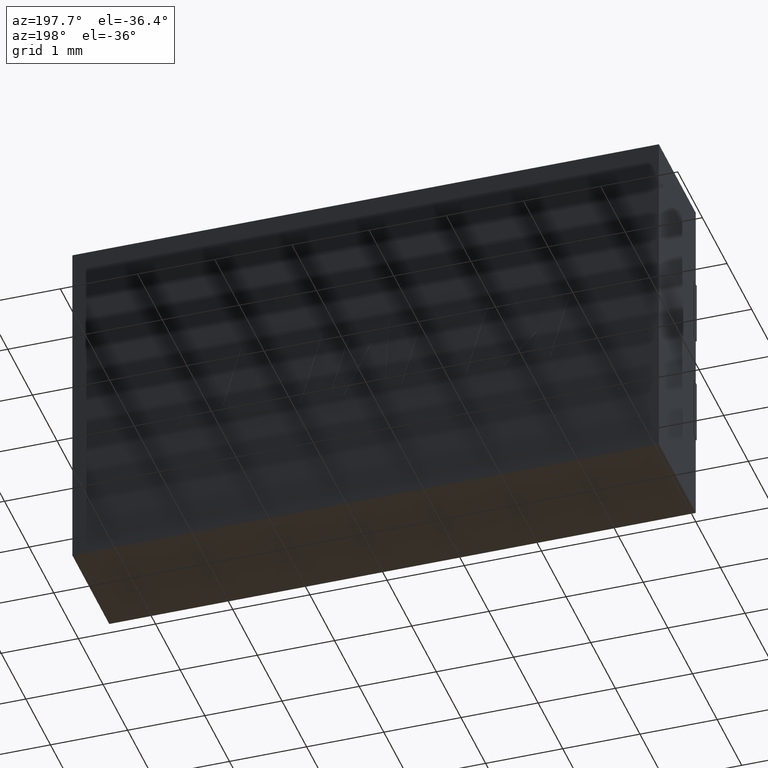
[diagram: clean part render]
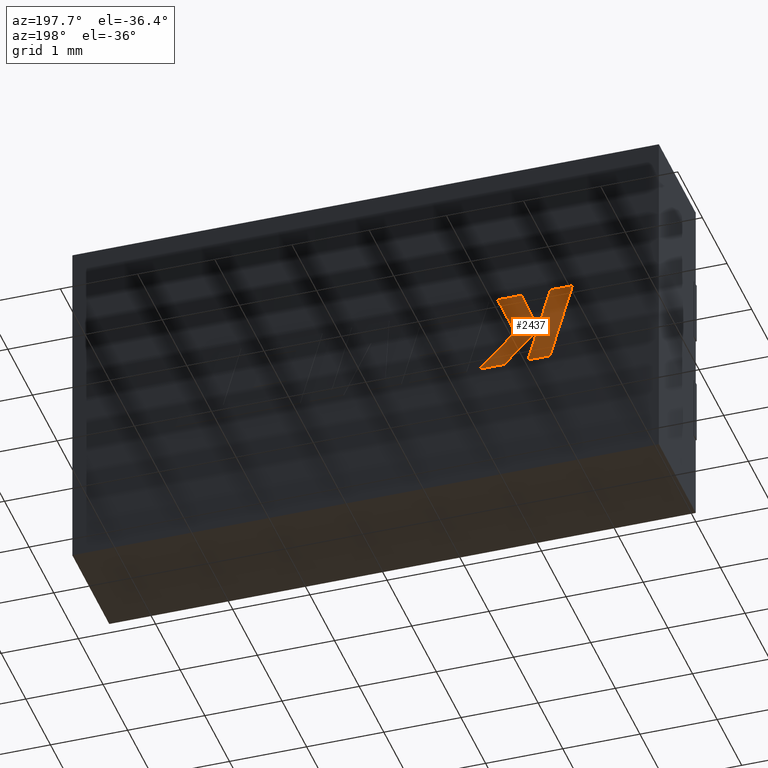
[diagram: same view with one face highlighted and labeled with its STEP entity id]
A machine part, auxiliary view. The second image highlights one B-rep face of the part: STEP entity #2437.
In plain terms, the highlighted planar face has unit normal (0, -1, 0).
Its self-contained STEP definition (entity closure, byte-faithful):
#16 = CARTESIAN_POINT ( 'NONE',  ( 2.086281039440971874, 1.510000000000000009, -1.926069293473886113 ) ) ;
#72 = EDGE_CURVE ( 'NONE', #1980, #699, #902, .T. ) ;
#83 = VECTOR ( 'NONE', #1527, 1000.000000000000114 ) ;
#181 = ORIENTED_EDGE ( 'NONE', *, *, #2844, .T. ) ;
#182 = LINE ( 'NONE', #2903, #1081 ) ;
#189 = CARTESIAN_POINT ( 'NONE',  ( 1.569826276927433151, 1.510000000000000009, -2.504262488550995425 ) ) ;
#251 = CARTESIAN_POINT ( 'NONE',  ( 1.402965152710222041, 1.510000000000000009, -1.926069293473886113 ) ) ;
#270 = DIRECTION ( 'NONE',  ( 0.7145695586381820563, -0.000000000000000000, -0.6995643972270413347 ) ) ;
#293 = LINE ( 'NONE', #2756, #1026 ) ;
#319 = FACE_OUTER_BOUND ( 'NONE', #2489, .T. ) ;
#337 = DIRECTION ( 'NONE',  ( 0.000000000000000000, -1.000000000000000000, 0.000000000000000000 ) ) ;
#365 = ORIENTED_EDGE ( 'NONE', *, *, #2232, .T. ) ;
#392 = CARTESIAN_POINT ( 'NONE',  ( 1.116314552832554208, 1.510000000000000009, -1.926069293473917421 ) ) ;
#407 = CARTESIAN_POINT ( 'NONE',  ( 1.779556712731359847, 1.510000000000000009, -1.926069293473886113 ) ) ;
#498 = ORIENTED_EDGE ( 'NONE', *, *, #514, .T. ) ;
#514 = EDGE_CURVE ( 'NONE', #1060, #1980, #293, .T. ) ;
#517 = ORIENTED_EDGE ( 'NONE', *, *, #2490, .T. ) ;
#610 = LINE ( 'NONE', #2274, #1227 ) ;
#619 = LINE ( 'NONE', #1358, #2239 ) ;
#643 = CARTESIAN_POINT ( 'NONE',  ( 1.693051797399718339, 1.510000000000000009, -2.934144902229014473 ) ) ;
#651 = DIRECTION ( 'NONE',  ( 0.2755265765475166662, -0.000000000000000000, -0.9612934544747537835 ) ) ;
#698 = VECTOR ( 'NONE', #2015, 1000.000000000000000 ) ;
#699 = VERTEX_POINT ( 'NONE', #2449 ) ;
#775 = CARTESIAN_POINT ( 'NONE',  ( 1.406018051842748973, 1.510000000000000009, -2.934144902229014473 ) ) ;
#787 = VERTEX_POINT ( 'NONE', #2063 ) ;
#896 = LINE ( 'NONE', #189, #1015 ) ;
#902 = LINE ( 'NONE', #2470, #1622 ) ;
#973 = CARTESIAN_POINT ( 'NONE',  ( 1.779556712731359847, 1.510000000000000009, -1.926069293473886113 ) ) ;
#1015 = VECTOR ( 'NONE', #2910, 1000.000000000000000 ) ;
#1026 = VECTOR ( 'NONE', #1859, 1000.000000000000000 ) ;
#1044 = EDGE_CURVE ( 'NONE', #2406, #1060, #610, .T. ) ;
#1060 = VERTEX_POINT ( 'NONE', #392 ) ;
#1062 = DIRECTION ( 'NONE',  ( 1.000000000000000000, -0.000000000000000000, -0.000000000000000000 ) ) ;
#1081 = VECTOR ( 'NONE', #1062, 1000.000000000000000 ) ;
#1083 = ORIENTED_EDGE ( 'NONE', *, *, #2210, .T. ) ;
#1097 = CARTESIAN_POINT ( 'NONE',  ( 1.569826276927433151, 1.510000000000000009, -2.504262488550995425 ) ) ;
#1215 = ORIENTED_EDGE ( 'NONE', *, *, #1044, .T. ) ;
#1227 = VECTOR ( 'NONE', #2944, 999.9999999999998863 ) ;
#1236 = CARTESIAN_POINT ( 'NONE',  ( 0.000000000000000000, 1.510000000000000009, 0.000000000000000000 ) ) ;
#1249 = DIRECTION ( 'NONE',  ( 0.000000000000000000, -0.000000000000000000, -1.000000000000000000 ) ) ;
#1307 = CARTESIAN_POINT ( 'NONE',  ( 1.998249674947784049, 1.510000000000000009, -2.934144902229014473 ) ) ;
#1358 = CARTESIAN_POINT ( 'NONE',  ( 1.859397973295460416, 1.510000000000000009, -2.473426989419050592 ) ) ;
#1371 = VECTOR ( 'NONE', #270, 1000.000000000000000 ) ;
#1410 = CARTESIAN_POINT ( 'NONE',  ( 2.329997959398633967, 1.510000000000000009, -2.934144902229014473 ) ) ;
#1442 = CARTESIAN_POINT ( 'NONE',  ( 1.859397973295460416, 1.510000000000000009, -2.473426989419050592 ) ) ;
#1489 = EDGE_CURVE ( 'NONE', #1490, #2406, #2020, .T. ) ;
#1490 = VERTEX_POINT ( 'NONE', #643 ) ;
#1523 = VERTEX_POINT ( 'NONE', #16 ) ;
#1527 = DIRECTION ( 'NONE',  ( 0.2755520632520532809, -0.000000000000000000, -0.9612861490927331332 ) ) ;
#1533 = DIRECTION ( 'NONE',  ( -0.3829140317376946157, -0.000000000000000000, -0.9237839814038689701 ) ) ;
#1543 = ORIENTED_EDGE ( 'NONE', *, *, #2506, .T. ) ;
#1576 = CARTESIAN_POINT ( 'NONE',  ( 1.406018051842748973, 1.510000000000000009, -2.934144902229014473 ) ) ;
#1582 = VERTEX_POINT ( 'NONE', #1442 ) ;
#1622 = VECTOR ( 'NONE', #651, 1000.000000000000114 ) ;
#1773 = CARTESIAN_POINT ( 'NONE',  ( 1.998249674947784049, 1.510000000000000009, -2.934144902229014473 ) ) ;
#1800 = AXIS2_PLACEMENT_3D ( 'NONE', #1236, #337, #1249 ) ;
#1820 = VERTEX_POINT ( 'NONE', #973 ) ;
#1859 = DIRECTION ( 'NONE',  ( 1.000000000000000000, -0.000000000000000000, 1.089306025555441111E-13 ) ) ;
#1881 = ORIENTED_EDGE ( 'NONE', *, *, #2707, .T. ) ;
#1980 = VERTEX_POINT ( 'NONE', #251 ) ;
#2015 = DIRECTION ( 'NONE',  ( -1.000000000000000000, -0.000000000000000000, -0.000000000000000000 ) ) ;
#2020 = LINE ( 'NONE', #1576, #2432 ) ;
#2023 = LINE ( 'NONE', #407, #2663 ) ;
#2063 = CARTESIAN_POINT ( 'NONE',  ( 2.329997959398633967, 1.510000000000000009, -2.934144902229014473 ) ) ;
#2210 = EDGE_CURVE ( 'NONE', #2821, #1490, #2480, .T. ) ;
#2232 = EDGE_CURVE ( 'NONE', #1582, #787, #2521, .T. ) ;
#2239 = VECTOR ( 'NONE', #1533, 1000.000000000000114 ) ;
#2274 = CARTESIAN_POINT ( 'NONE',  ( 1.116314552832554208, 1.510000000000000009, -1.926069293473917421 ) ) ;
#2384 = ORIENTED_EDGE ( 'NONE', *, *, #72, .T. ) ;
#2386 = PLANE ( 'NONE',  #1800 ) ;
#2393 = ORIENTED_EDGE ( 'NONE', *, *, #1489, .T. ) ;
#2406 = VERTEX_POINT ( 'NONE', #775 ) ;
#2432 = VECTOR ( 'NONE', #2698, 1000.000000000000000 ) ;
#2437 = ADVANCED_FACE ( 'NONE', ( #319 ), #2386, .F. ) ;
#2449 = CARTESIAN_POINT ( 'NONE',  ( 1.559849183708963194, 1.510000000000000009, -2.473426989419038158 ) ) ;
#2461 = LINE ( 'NONE', #1307, #698 ) ;
#2470 = CARTESIAN_POINT ( 'NONE',  ( 1.559849183708963194, 1.510000000000000009, -2.473426989419038158 ) ) ;
#2480 = LINE ( 'NONE', #2950, #83 ) ;
#2489 = EDGE_LOOP ( 'NONE', ( #1215, #498, #2384, #1881, #1543, #2811, #365, #517, #181, #1083, #2393 ) ) ;
#2490 = EDGE_CURVE ( 'NONE', #787, #2855, #2461, .T. ) ;
#2506 = EDGE_CURVE ( 'NONE', #1820, #1523, #182, .T. ) ;
#2521 = LINE ( 'NONE', #1410, #1371 ) ;
#2663 = VECTOR ( 'NONE', #2939, 1000.000000000000114 ) ;
#2698 = DIRECTION ( 'NONE',  ( -1.000000000000000000, -0.000000000000000000, -0.000000000000000000 ) ) ;
#2707 = EDGE_CURVE ( 'NONE', #699, #1820, #2023, .T. ) ;
#2756 = CARTESIAN_POINT ( 'NONE',  ( 1.402965152710222041, 1.510000000000000009, -1.926069293473886113 ) ) ;
#2769 = EDGE_CURVE ( 'NONE', #1523, #1582, #619, .T. ) ;
#2811 = ORIENTED_EDGE ( 'NONE', *, *, #2769, .T. ) ;
#2821 = VERTEX_POINT ( 'NONE', #1097 ) ;
#2844 = EDGE_CURVE ( 'NONE', #2855, #2821, #896, .T. ) ;
#2855 = VERTEX_POINT ( 'NONE', #1773 ) ;
#2903 = CARTESIAN_POINT ( 'NONE',  ( 2.086281039440971874, 1.510000000000000009, -1.926069293473886113 ) ) ;
#2910 = DIRECTION ( 'NONE',  ( -0.7059037656364859359, -0.000000000000000000, 0.7083077534943614806 ) ) ;
#2939 = DIRECTION ( 'NONE',  ( 0.3725077383644749829, -0.000000000000000000, 0.9280290862136724162 ) ) ;
#2944 = DIRECTION ( 'NONE',  ( -0.2762033010252006315, -0.000000000000000000, 0.9610992334315862085 ) ) ;
#2950 = CARTESIAN_POINT ( 'NONE',  ( 1.693051797399718339, 1.510000000000000009, -2.934144902229014473 ) ) ;